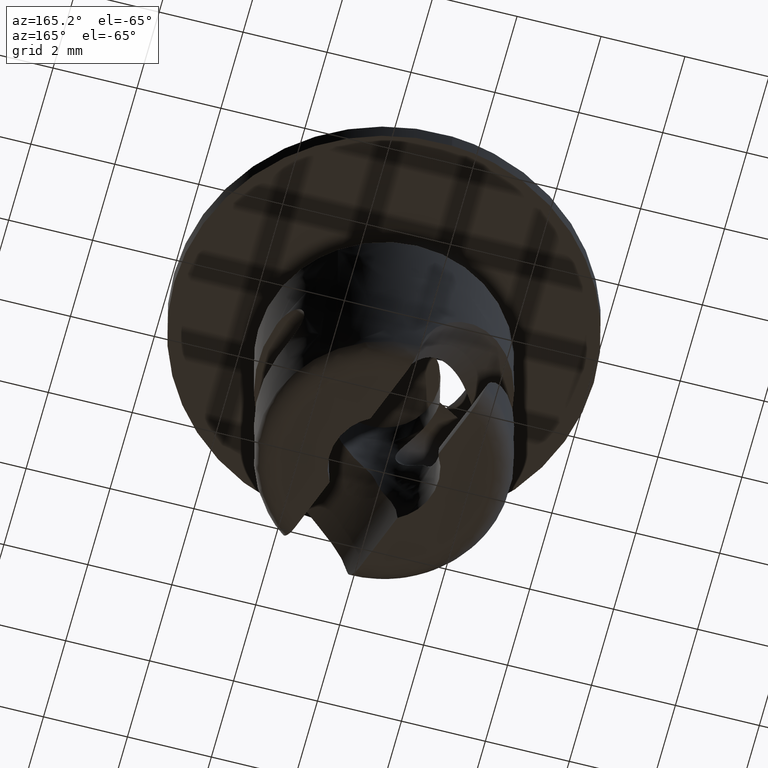
[diagram: clean part render]
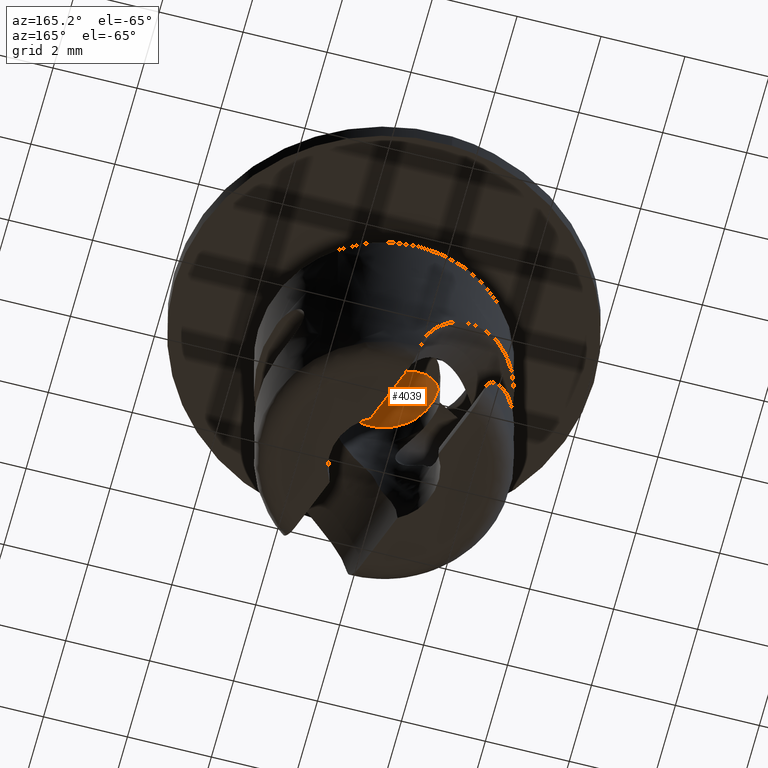
[diagram: same view with one face highlighted and labeled with its STEP entity id]
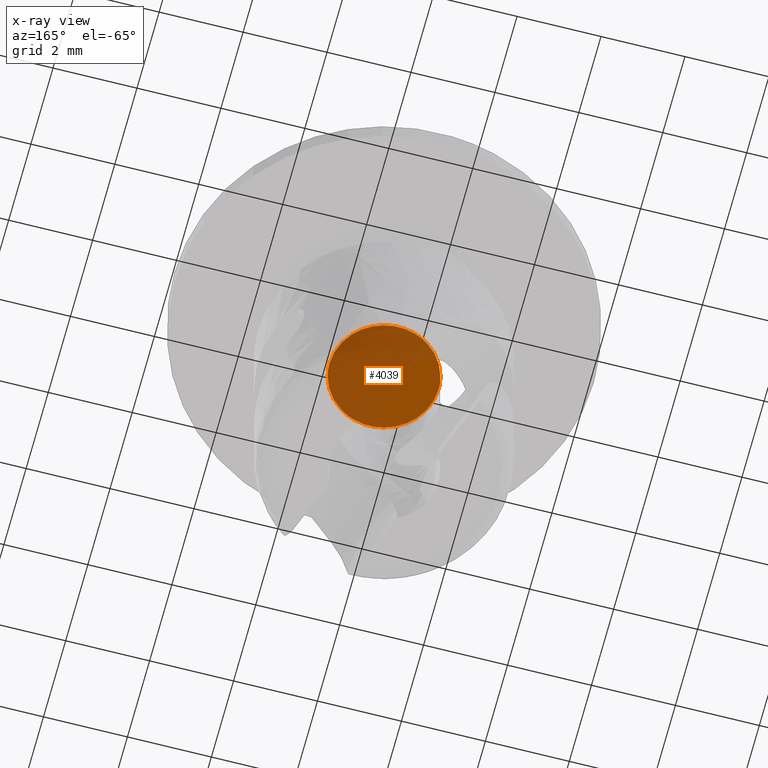
[diagram: x-ray of the same camera — body ghosted, the highlighted face saturated]
A machine part, auxiliary view. The second image highlights one B-rep face of the part: STEP entity #4039.
The next image is the same camera in x-ray: the body ghosted, the highlighted face saturated — about 69% of this face is hidden behind the body in this view.
In plain terms, the highlighted face is a freeform B-spline surface patch.
Its self-contained STEP definition (entity closure, byte-faithful):
#3968=CARTESIAN_POINT('',(-1.429869994960696,1.429717142083255,-2.400000000000000));
#3969=CARTESIAN_POINT('',(1.429870064698130,1.429717142083255,-2.400000000000000));
#3970=CARTESIAN_POINT('',(-1.429869994960696,-1.429717072345820,-2.400000000000000));
#3971=CARTESIAN_POINT('',(1.429870064698130,-1.429717072345820,-2.400000000000000));
#3972=B_SPLINE_SURFACE_WITH_KNOTS('',1,1,((#3968,#3970),(#3969,#3971)),.UNSPECIFIED.,.F.,.F.,.U.,(2,2),(2,2),(0.0,2.859740059658825),(0.0,2.859434214429075),.UNSPECIFIED.);
#3973=CARTESIAN_POINT('',(-0.724495657301528,1.079400779391546,-2.400000000000070));
#3974=VERTEX_POINT('',#3973);
#3975=CARTESIAN_POINT('',(-1.300000000000000,0.0,-2.400000000000070));
#3976=VERTEX_POINT('',#3975);
#3977=CARTESIAN_POINT('',(-0.724495657301528,1.079400779391546,-2.400000000000069));
#3978=CARTESIAN_POINT('',(-1.299999999999983,0.693121275982073,-2.400000000000070));
#3979=CARTESIAN_POINT('',(-1.300000000000000,0.0,-2.400000000000070));
#3987=(BOUNDED_CURVE()B_SPLINE_CURVE(2,(#3977,#3978,#3979),.UNSPECIFIED.,.F.,.U.)B_SPLINE_CURVE_WITH_KNOTS((3,3),(0.845595525639268,1.0),.UNSPECIFIED.)CURVE()GEOMETRIC_REPRESENTATION_ITEM()RATIONAL_B_SPLINE_CURVE((0.861657142480007,0.819103906021144,1.0))REPRESENTATION_ITEM(''));
#3988=EDGE_CURVE('',#3974,#3976,#3987,.T.);
#3989=ORIENTED_EDGE('',*,*,#3988,.F.);
#3990=CARTESIAN_POINT('',(1.300000000000000,0.0,-2.400000000000070));
#3991=VERTEX_POINT('',#3990);
#3992=CARTESIAN_POINT('',(1.300000000000000,0.0,-2.400000000000070));
#3993=CARTESIAN_POINT('',(1.300000000000009,1.299999999999987,-2.400000000000069));
#3994=CARTESIAN_POINT('',(2.493666E-014,1.299999999999963,-2.400000000000069));
#3995=CARTESIAN_POINT('',(-0.395832582156582,1.299999999999956,-2.400000000000069));
#3996=CARTESIAN_POINT('',(-0.724495657301528,1.079400779391546,-2.400000000000069));
#4004=(BOUNDED_CURVE()B_SPLINE_CURVE(2,(#3992,#3993,#3994,#3995,#3996),.UNSPECIFIED.,.F.,.U.)B_SPLINE_CURVE_WITH_KNOTS((3,2,3),(0.500000000000000,0.750000000000000,0.845595525639268),.UNSPECIFIED.)CURVE()GEOMETRIC_REPRESENTATION_ITEM()RATIONAL_B_SPLINE_CURVE((1.0,0.707106781186548,1.0,0.888002875165404,0.861657142480007))REPRESENTATION_ITEM(''));
#4005=EDGE_CURVE('',#3991,#3974,#4004,.T.);
#4006=ORIENTED_EDGE('',*,*,#4005,.F.);
#4007=CARTESIAN_POINT('',(0.724495657301528,-1.079400779391546,-2.400000000000070));
#4008=VERTEX_POINT('',#4007);
#4009=CARTESIAN_POINT('',(0.724495657301528,-1.079400779391546,-2.400000000000069));
#4010=CARTESIAN_POINT('',(1.299999999999983,-0.693121275982073,-2.400000000000070));
#4011=CARTESIAN_POINT('',(1.300000000000000,0.0,-2.400000000000070));
#4019=(BOUNDED_CURVE()B_SPLINE_CURVE(2,(#4009,#4010,#4011),.UNSPECIFIED.,.F.,.U.)B_SPLINE_CURVE_WITH_KNOTS((3,3),(0.345595525639268,0.500000000000000),.UNSPECIFIED.)CURVE()GEOMETRIC_REPRESENTATION_ITEM()RATIONAL_B_SPLINE_CURVE((0.861657142480007,0.819103906021144,1.0))REPRESENTATION_ITEM(''));
#4020=EDGE_CURVE('',#4008,#3991,#4019,.T.);
#4021=ORIENTED_EDGE('',*,*,#4020,.F.);
#4022=CARTESIAN_POINT('',(-1.300000000000000,0.0,-2.400000000000070));
#4023=CARTESIAN_POINT('',(-1.300000000000009,-1.299999999999987,-2.400000000000069));
#4024=CARTESIAN_POINT('',(-2.485155E-014,-1.299999999999963,-2.400000000000069));
#4025=CARTESIAN_POINT('',(0.395832582156582,-1.299999999999956,-2.400000000000069));
#4026=CARTESIAN_POINT('',(0.724495657301528,-1.079400779391546,-2.400000000000069));
#4034=(BOUNDED_CURVE()B_SPLINE_CURVE(2,(#4022,#4023,#4024,#4025,#4026),.UNSPECIFIED.,.F.,.U.)B_SPLINE_CURVE_WITH_KNOTS((3,2,3),(0.0,0.250000000000000,0.345595525639268),.UNSPECIFIED.)CURVE()GEOMETRIC_REPRESENTATION_ITEM()RATIONAL_B_SPLINE_CURVE((1.0,0.707106781186548,1.0,0.888002875165404,0.861657142480007))REPRESENTATION_ITEM(''));
#4035=EDGE_CURVE('',#3976,#4008,#4034,.T.);
#4036=ORIENTED_EDGE('',*,*,#4035,.F.);
#4037=EDGE_LOOP('',(#3989,#4006,#4021,#4036));
#4038=FACE_OUTER_BOUND('',#4037,.T.);
#4039=ADVANCED_FACE('',(#4038),#3972,.T.);